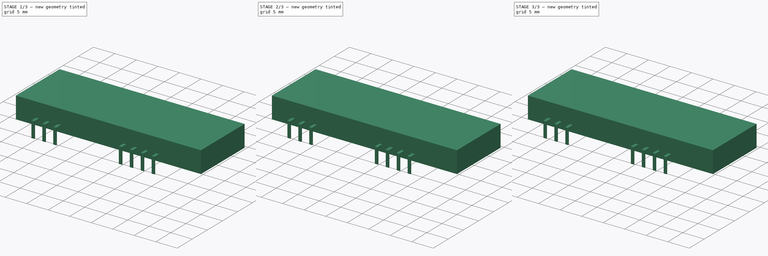
[diagram: build sequence overview — one tinted view per stage of 3, left to right]
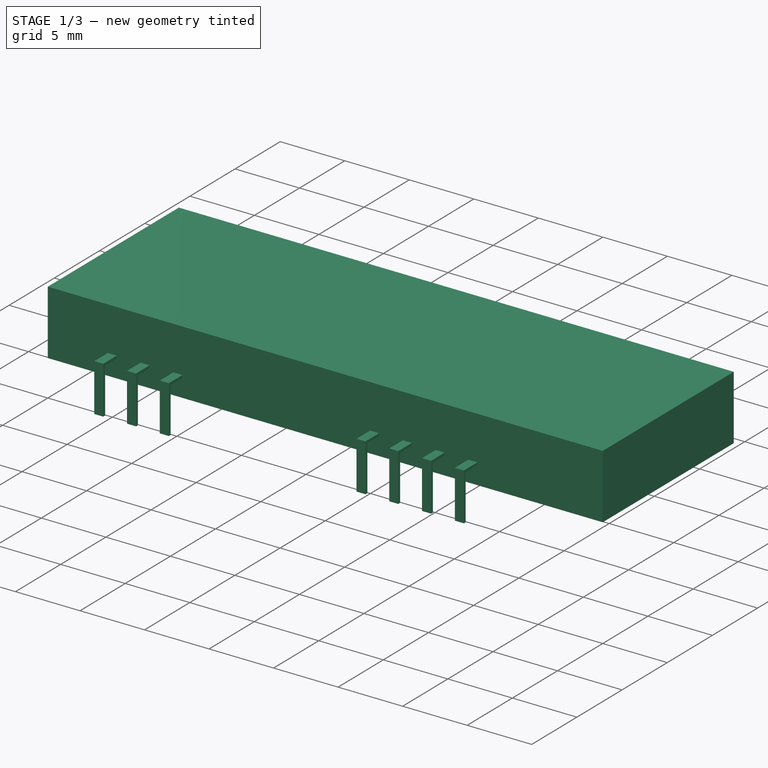
[diagram: stage 1 of 3 — iso view after this stage's code; geometry added in this stage tinted green]
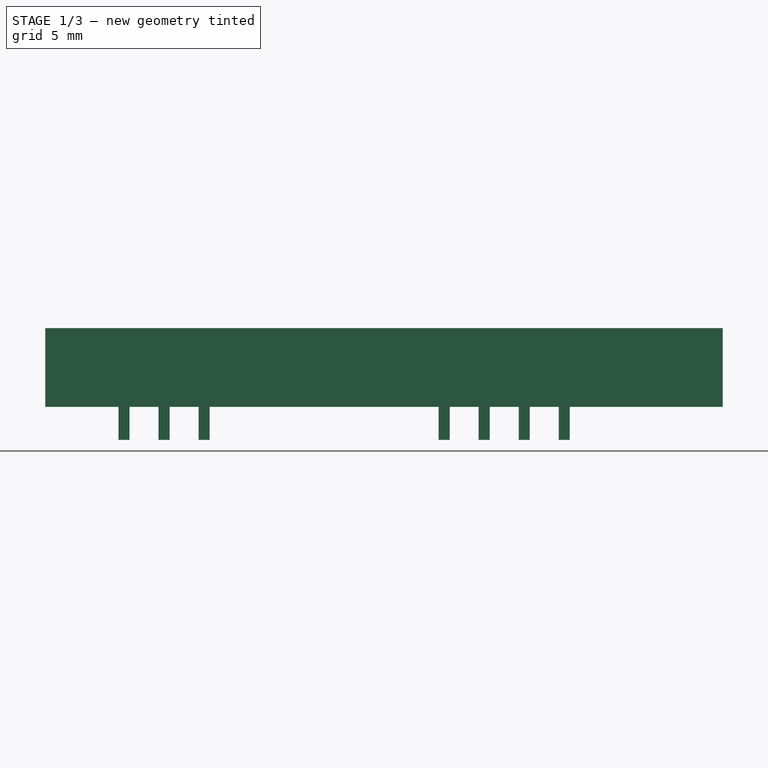
[diagram: stage 1 of 3 — front view after this stage's code; geometry added in this stage tinted green]
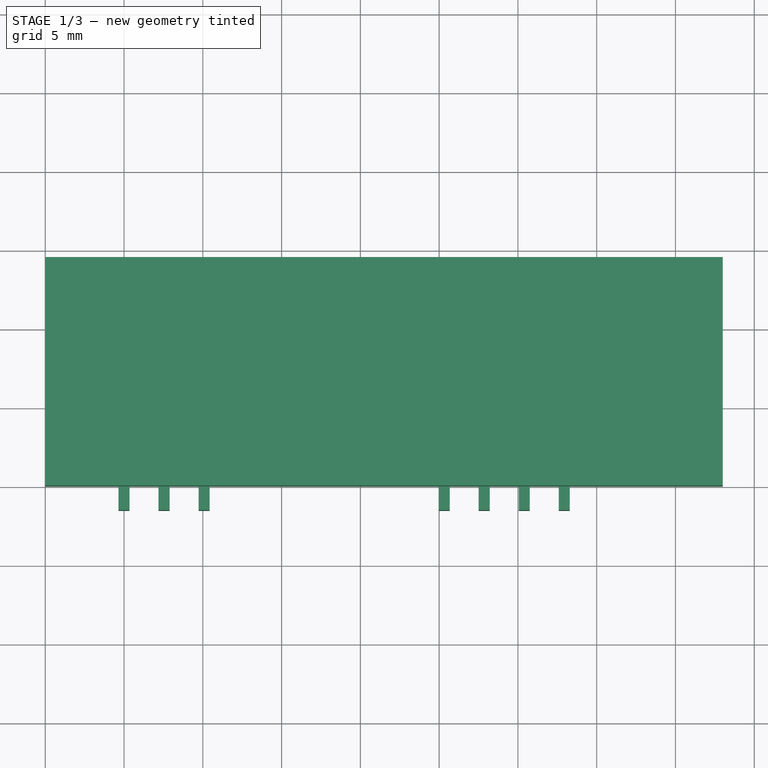
[diagram: stage 1 of 3 — top view after this stage's code; geometry added in this stage tinted green]
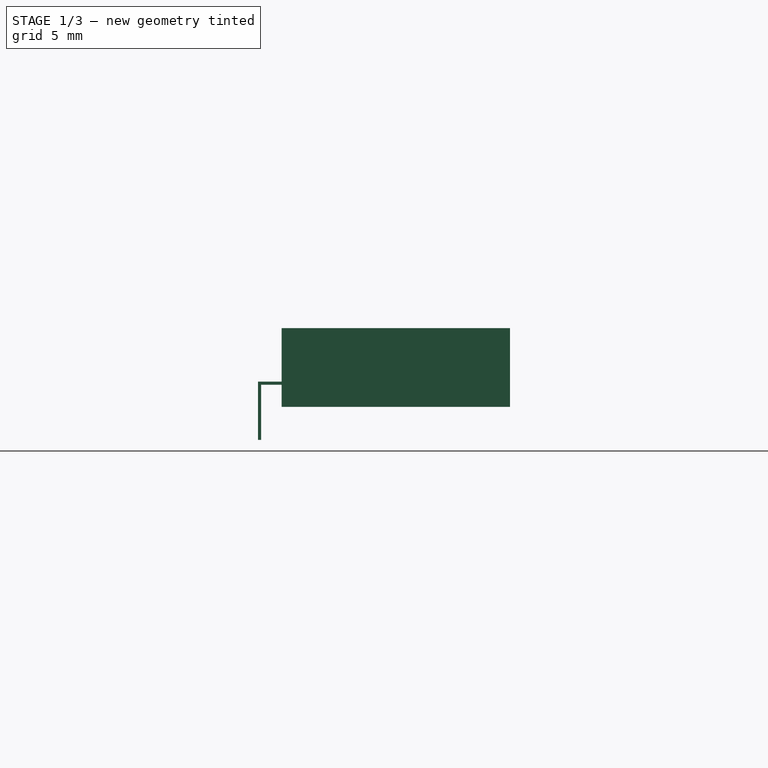
[diagram: stage 1 of 3 — right view after this stage's code; geometry added in this stage tinted green]
FCSTD DOCUMENT  (FreeCAD 0.15R4671 (Git))
Label: HX1
License: All rights reserved
LicenseURL: http://en.wikipedia.org/wiki/All_rights_reserved
objects: PartDesign::Fillet×5, Sketcher::SketchObject×2, PartDesign::Pad×2, Part::Box×1
note: 12 computed .brp shape members not serialized (recipe doc carries the construction recipe); baked Part::Feature solids carry a one-line shape summary decoded from their .brp

FEATURE [Part::Box] Box  label="Würfel"
  Height = 5
  Length = 43
  Width = 14.5
FEATURE [Sketcher::SketchObject] Sketch
  Placement = pos=(0,0,0) rot=(1,0,0;1.5708rad)
  Support = -> Box [Face3]
  sketch-geometry (28):
    g0: LineSegment StartX=4.65 StartY=1.4 StartZ=0 EndX=5.35 EndY=1.4 EndZ=0
    g1: LineSegment StartX=5.35 StartY=1.4 StartZ=0 EndX=5.35 EndY=1.6 EndZ=0
    g2: LineSegment StartX=5.35 StartY=1.6 StartZ=0 EndX=4.65 EndY=1.6 EndZ=0
    g3: LineSegment StartX=4.65 StartY=1.6 StartZ=0 EndX=4.65 EndY=1.4 EndZ=0
    g4: LineSegment StartX=7.19 StartY=1.4 StartZ=0 EndX=7.89 EndY=1.4 EndZ=0
    g5: LineSegment StartX=7.89 StartY=1.4 StartZ=0 EndX=7.89 EndY=1.6 EndZ=0
    g6: LineSegment StartX=7.89 StartY=1.6 StartZ=0 EndX=7.19 EndY=1.6 EndZ=0
    g7: LineSegment StartX=7.19 StartY=1.6 StartZ=0 EndX=7.19 EndY=1.4 EndZ=0
    g8: LineSegment StartX=10.43 StartY=1.4 StartZ=0 EndX=9.73 EndY=1.4 EndZ=0
    g9: LineSegment StartX=9.73 StartY=1.4 StartZ=0 EndX=9.73 EndY=1.6 EndZ=0
    g10: LineSegment StartX=9.73 StartY=1.6 StartZ=0 EndX=10.43 EndY=1.6 EndZ=0
    g11: LineSegment StartX=10.43 StartY=1.6 StartZ=0 EndX=10.43 EndY=1.4 EndZ=0
    g12: LineSegment StartX=25.67 StartY=1.4 StartZ=0 EndX=24.97 EndY=1.4 EndZ=0
    g13: LineSegment StartX=24.97 StartY=1.4 StartZ=0 EndX=24.97 EndY=1.6 EndZ=0
    g14: LineSegment StartX=24.97 StartY=1.6 StartZ=0 EndX=25.67 EndY=1.6 EndZ=0
    g15: LineSegment StartX=25.67 StartY=1.6 StartZ=0 EndX=25.67 EndY=1.4 EndZ=0
    g16: LineSegment StartX=28.21 StartY=1.4 StartZ=0 EndX=27.51 EndY=1.4 EndZ=0
    g17: LineSegment StartX=27.51 StartY=1.4 StartZ=0 EndX=27.51 EndY=1.6 EndZ=0
    g18: LineSegment StartX=27.51 StartY=1.6 StartZ=0 EndX=28.21 EndY=1.6 EndZ=0
    g19: LineSegment StartX=28.21 StartY=1.6 StartZ=0 EndX=28.21 EndY=1.4 EndZ=0
    g20: LineSegment StartX=30.05 StartY=1.4 StartZ=0 EndX=30.75 EndY=1.4 EndZ=0
    g21: LineSegment StartX=30.75 StartY=1.4 StartZ=0 EndX=30.75 EndY=1.6 EndZ=0
    g22: LineSegment StartX=30.75 StartY=1.6 StartZ=0 EndX=30.05 EndY=1.6 EndZ=0
    g23: LineSegment StartX=30.05 StartY=1.6 StartZ=0 EndX=30.05 EndY=1.4 EndZ=0
    g24: LineSegment StartX=32.59 StartY=1.4 StartZ=0 EndX=33.29 EndY=1.4 EndZ=0
    g25: LineSegment StartX=33.29 StartY=1.4 StartZ=0 EndX=33.29 EndY=1.6 EndZ=0
    g26: LineSegment StartX=33.29 StartY=1.6 StartZ=0 EndX=32.59 EndY=1.6 EndZ=0
    g27: LineSegment StartX=32.59 StartY=1.6 StartZ=0 EndX=32.59 EndY=1.4 EndZ=0
  constraints (84):
    c: Coincident(g0,g1)
    c: Coincident(g1,g2)
    c: Coincident(g2,g3)
    c: Coincident(g3,g0)
    c: Horizontal(g0)
    c: Horizontal(g2)
    c: Vertical(g1)
    c: Vertical(g3)
    c: DistanceX(g2) = -0.7
    c: DistanceY(g3) = -0.2
    c: DistanceX(g-1,g0) = 4.65
    c: DistanceY(g-1,g0) = 1.4
    c: Coincident(g4,g5)
    c: Coincident(g5,g6)
    c: Coincident(g6,g7)
    c: Coincident(g7,g4)
    c: Horizontal(g4)
    c: Horizontal(g6)
    c: Vertical(g5)
    c: Vertical(g7)
    c: Coincident(g8,g9)
    c: Coincident(g9,g10)
    c: Coincident(g10,g11)
    c: Coincident(g11,g8)
    c: Horizontal(g8)
    c: Horizontal(g10)
    c: Vertical(g9)
    c: Vertical(g11)
    c: Coincident(g12,g13)
    c: Coincident(g13,g14)
    c: Coincident(g14,g15)
    c: Coincident(g15,g12)
    c: Horizontal(g12)
    c: Horizontal(g14)
    c: Vertical(g13)
    c: Vertical(g15)
    c: Coincident(g16,g17)
    c: Coincident(g17,g18)
    c: Coincident(g18,g19)
    c: Coincident(g19,g16)
    c: Horizontal(g16)
    c: Horizontal(g18)
    c: Vertical(g17)
    c: Vertical(g19)
    c: Coincident(g20,g21)
    c: Coincident(g21,g22)
    c: Coincident(g22,g23)
    c: Coincident(g23,g20)
    c: Horizontal(g20)
    c: Horizontal(g22)
    c: Vertical(g21)
    c: Vertical(g23)
    c: Coincident(g24,g25)
    c: Coincident(g25,g26)
    c: Coincident(g26,g27)
    c: Coincident(g27,g24)
    c: Horizontal(g24)
    c: Horizontal(g26)
    c: Vertical(g25)
    c: Vertical(g27)
    c: Equal(g3,g7)
    c: Equal(g7,g11)
    c: Equal(g11,g15)
    c: Equal(g15,g19)
    c: Equal(g19,g23)
    c: Equal(g23,g27)
    c: Equal(g2,g6)
    c: Equal(g6,g10)
    c: Equal(g10,g14)
    c: Equal(g14,g18)
    c: Equal(g18,g22)
    c: Equal(g22,g26)
    c: DistanceX(g2,g6) = 2.54
    c: DistanceY(g0,g4) = 0
    c: DistanceY(g4,g8) = 0
    c: DistanceX(g6,g9) = 2.54
    c: DistanceY(g8,g12) = 0
    c: DistanceY(g12,g16) = 0
    c: DistanceY(g16,g20) = 0
    c: DistanceY(g20,g24) = 0
    c: DistanceX(g9,g13) = 15.24
    c: DistanceX(g13,g17) = 2.54
    c: DistanceX(g17,g22) = 2.54
    c: DistanceX(g22,g26) = 2.54
FEATURE [PartDesign::Pad] Pad
  Length = 1.5
  Length2 = 100
  Sketch = -> Sketch
  Type = 0
FEATURE [Sketcher::SketchObject] Sketch001
  ExternalGeometry = -> [Pad]
  Placement = pos=(0,0,1.4) rot=(1,0,0;3.14159rad)
  Support = -> Pad [Face16]
  sketch-geometry (28):
    g0: LineSegment StartX=7.19 StartY=1.5 StartZ=0 EndX=7.89 EndY=1.5 EndZ=0
    g1: LineSegment StartX=7.89 StartY=1.5 StartZ=0 EndX=7.89 EndY=1.3 EndZ=0
    g2: LineSegment StartX=7.89 StartY=1.3 StartZ=0 EndX=7.19 EndY=1.3 EndZ=0
    g3: LineSegment StartX=7.19 StartY=1.3 StartZ=0 EndX=7.19 EndY=1.5 EndZ=0
    g4: LineSegment StartX=9.73 StartY=1.5 StartZ=0 EndX=10.43 EndY=1.5 EndZ=0
    g5: LineSegment StartX=10.43 StartY=1.5 StartZ=0 EndX=10.43 EndY=1.3 EndZ=0
    g6: LineSegment StartX=10.43 StartY=1.3 StartZ=0 EndX=9.73 EndY=1.3 EndZ=0
    g7: LineSegment StartX=9.73 StartY=1.3 StartZ=0 EndX=9.73 EndY=1.5 EndZ=0
    g8: LineSegment StartX=24.97 StartY=1.5 StartZ=0 EndX=25.67 EndY=1.5 EndZ=0
    g9: LineSegment StartX=25.67 StartY=1.5 StartZ=0 EndX=25.67 EndY=1.3 EndZ=0
    g10: LineSegment StartX=25.67 StartY=1.3 StartZ=0 EndX=24.97 EndY=1.3 EndZ=0
    g11: LineSegment StartX=24.97 StartY=1.3 StartZ=0 EndX=24.97 EndY=1.5 EndZ=0
    g12: LineSegment StartX=27.51 StartY=1.5 StartZ=0 EndX=28.21 EndY=1.5 EndZ=0
    g13: LineSegment StartX=28.21 StartY=1.5 StartZ=0 EndX=28.21 EndY=1.3 EndZ=0
    g14: LineSegment StartX=28.21 StartY=1.3 StartZ=0 EndX=27.51 EndY=1.3 EndZ=0
    g15: LineSegment StartX=27.51 StartY=1.3 StartZ=0 EndX=27.51 EndY=1.5 EndZ=0
    g16: LineSegment StartX=32.59 StartY=1.5 StartZ=0 EndX=33.29 EndY=1.5 EndZ=0
    g17: LineSegment StartX=33.29 StartY=1.5 StartZ=0 EndX=33.29 EndY=1.3 EndZ=0
    g18: LineSegment StartX=33.29 StartY=1.3 StartZ=0 EndX=32.59 EndY=1.3 EndZ=0
    g19: LineSegment StartX=32.59 StartY=1.3 StartZ=0 EndX=32.59 EndY=1.5 EndZ=0
    g20: LineSegment StartX=30.05 StartY=1.5 StartZ=0 EndX=30.75 EndY=1.5 EndZ=0
    g21: LineSegment StartX=30.75 StartY=1.5 StartZ=0 EndX=30.75 EndY=1.3 EndZ=0
    g22: LineSegment StartX=30.75 StartY=1.3 StartZ=0 EndX=30.05 EndY=1.3 EndZ=0
    g23: LineSegment StartX=30.05 StartY=1.3 StartZ=0 EndX=30.05 EndY=1.5 EndZ=0
    g24: LineSegment StartX=4.65 StartY=1.5 StartZ=0 EndX=5.35 EndY=1.5 EndZ=0
    g25: LineSegment StartX=5.35 StartY=1.5 StartZ=0 EndX=5.35 EndY=1.3 EndZ=0
    g26: LineSegment StartX=5.35 StartY=1.3 StartZ=0 EndX=4.65 EndY=1.3 EndZ=0
    g27: LineSegment StartX=4.65 StartY=1.3 StartZ=0 EndX=4.65 EndY=1.5 EndZ=0
  constraints (77):
    c: Coincident(g0,g1)
    c: Coincident(g1,g2)
    c: Coincident(g2,g3)
    c: Coincident(g3,g0)
    c: Horizontal(g0)
    c: Horizontal(g2)
    c: Vertical(g1)
    c: Vertical(g3)
    c: Coincident(g0,g-5)
    c: PointOnObject(g1,g-6)
    c: Coincident(g4,g5)
    c: Coincident(g5,g6)
    c: Coincident(g6,g7)
    c: Coincident(g7,g4)
    c: Horizontal(g4)
    c: Horizontal(g6)
    c: Vertical(g5)
    c: Vertical(g7)
    c: Coincident(g4,g-7)
    c: PointOnObject(g5,g-8)
    c: Coincident(g8,g9)
    c: Coincident(g9,g10)
    c: Coincident(g10,g11)
    c: Coincident(g11,g8)
    c: Horizontal(g8)
    c: Horizontal(g10)
    c: Vertical(g9)
    c: Vertical(g11)
    c: Coincident(g8,g-9)
    c: PointOnObject(g9,g-13)
    c: Coincident(g12,g13)
    c: Coincident(g13,g14)
    c: Coincident(g14,g15)
    c: Coincident(g15,g12)
    c: Horizontal(g12)
    c: Horizontal(g14)
    c: Vertical(g13)
    c: Vertical(g15)
    c: Coincident(g12,g-10)
    c: PointOnObject(g13,g-12)
    c: Coincident(g16,g17)
    c: Coincident(g17,g18)
    c: Coincident(g18,g19)
    c: Coincident(g19,g16)
    c: Horizontal(g16)
    c: Horizontal(g18)
    c: Vertical(g17)
    c: Vertical(g19)
    c: Coincident(g16,g-15)
    c: PointOnObject(g17,g-16)
    c: Coincident(g20,g21)
    c: Coincident(g21,g22)
    c: Coincident(g22,g23)
    c: Coincident(g23,g20)
    c: Horizontal(g20)
    c: Horizontal(g22)
    c: Vertical(g21)
    c: Vertical(g23)
    c: Coincident(g20,g-11)
    c: PointOnObject(g21,g-14)
    c: Coincident(g24,g25)
    c: Coincident(g25,g26)
    c: Coincident(g26,g27)
    c: Coincident(g27,g24)
    c: Horizontal(g24)
    c: Horizontal(g26)
    c: Vertical(g25)
    c: Vertical(g27)
    c: Coincident(g24,g-3)
    c: PointOnObject(g25,g-4)
    c: DistanceY(g27) = 0.2
    c: Equal(g3,g27)
    c: Equal(g27,g7)
    c: Equal(g7,g11)
    c: Equal(g11,g15)
    c: Equal(g15,g23)
    c: Equal(g23,g19)
FEATURE [PartDesign::Pad] Pad001
  Length = 3.5
  Length2 = 100
  Sketch = -> Sketch001
  Type = 0
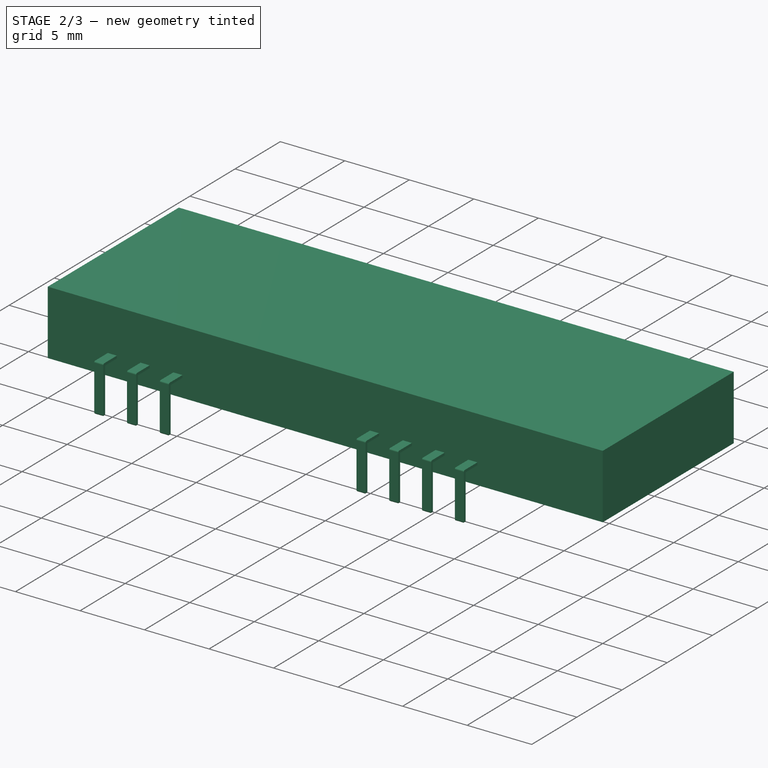
[diagram: stage 2 of 3 — iso view after this stage's code; geometry added in this stage tinted green]
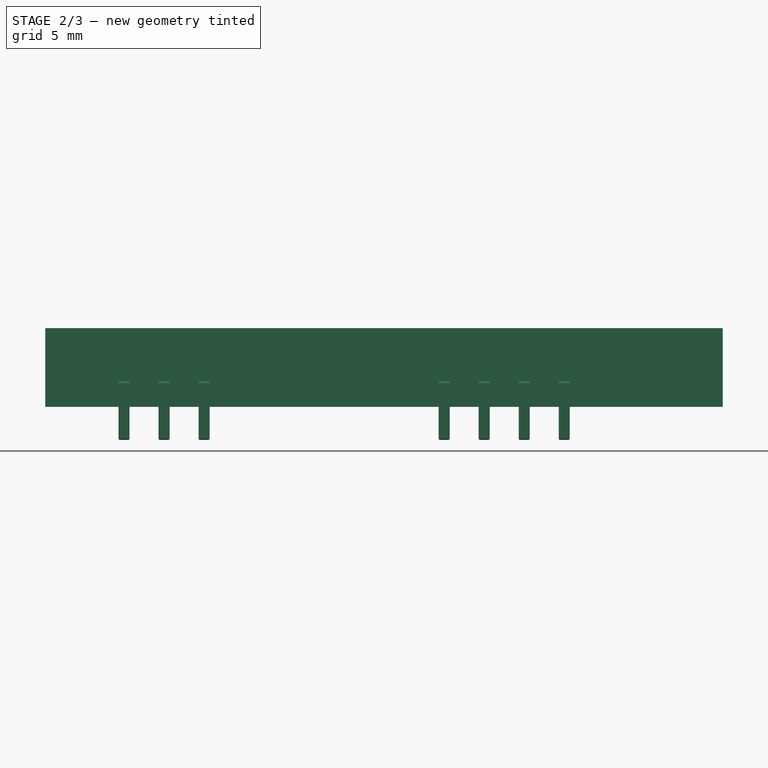
[diagram: stage 2 of 3 — front view after this stage's code; geometry added in this stage tinted green]
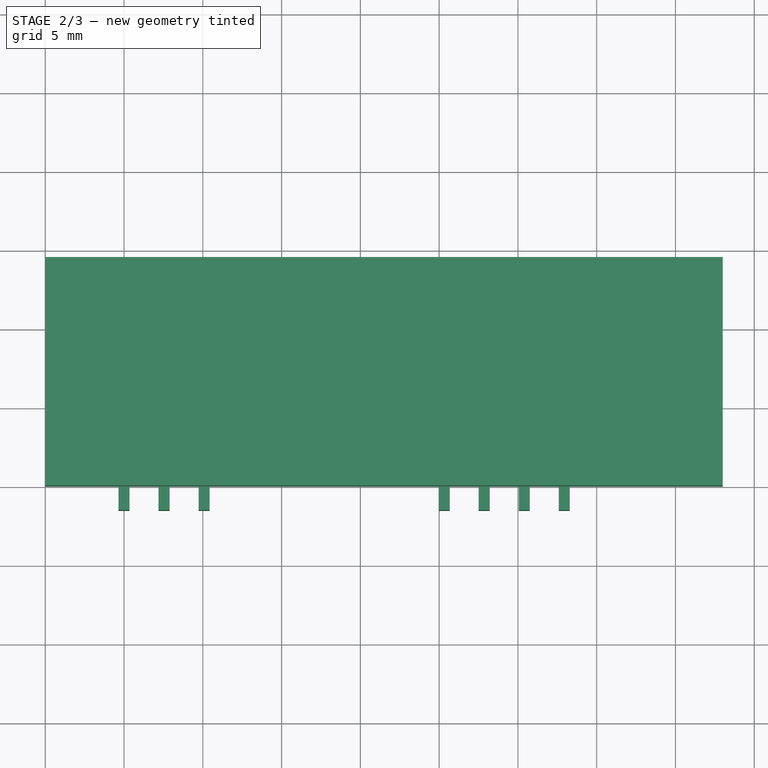
[diagram: stage 2 of 3 — top view after this stage's code; geometry added in this stage tinted green]
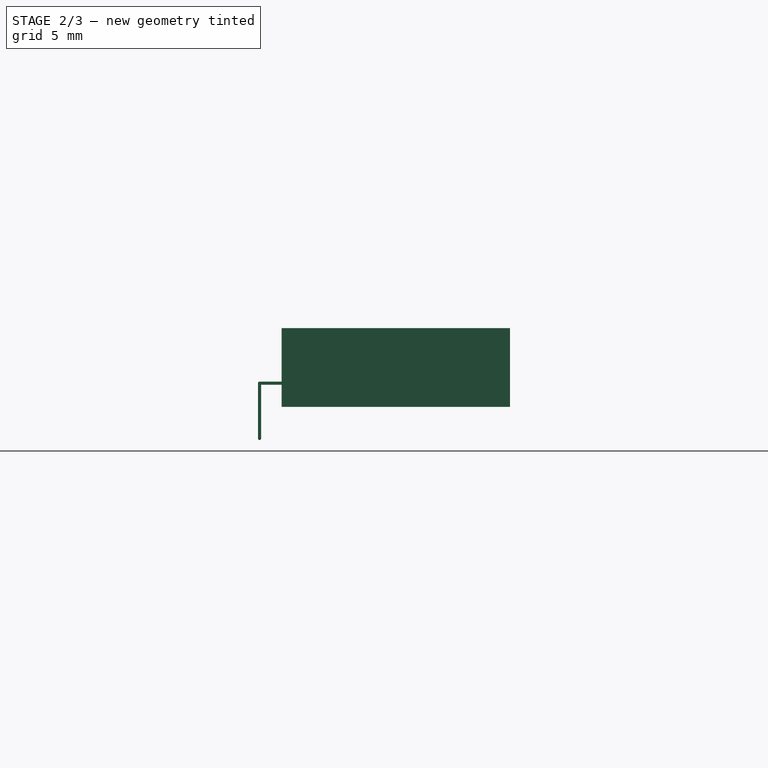
[diagram: stage 2 of 3 — right view after this stage's code; geometry added in this stage tinted green]
FEATURE [PartDesign::Fillet] Fillet
  Base = -> Pad001 [Edge42,Edge98,Edge108,Edge52,Edge70,Edge72,Edge82]
  Radius = 0.1
FEATURE [PartDesign::Fillet] Fillet001
  Base = -> Fillet [Edge191,Edge156,Edge158,Edge160,Edge192,Edge165,Edge167,Edge169,Edge190,Edge147,Edge149,Edge151,Edge189,Edge138,Edge140,Edge142,Edge133,Edge131,Edge134,Edge48,Edge193,Edge179,Edge172,Edge176,Edge194,Edge188,Edge181,Edge185]
  Radius = 0.099999
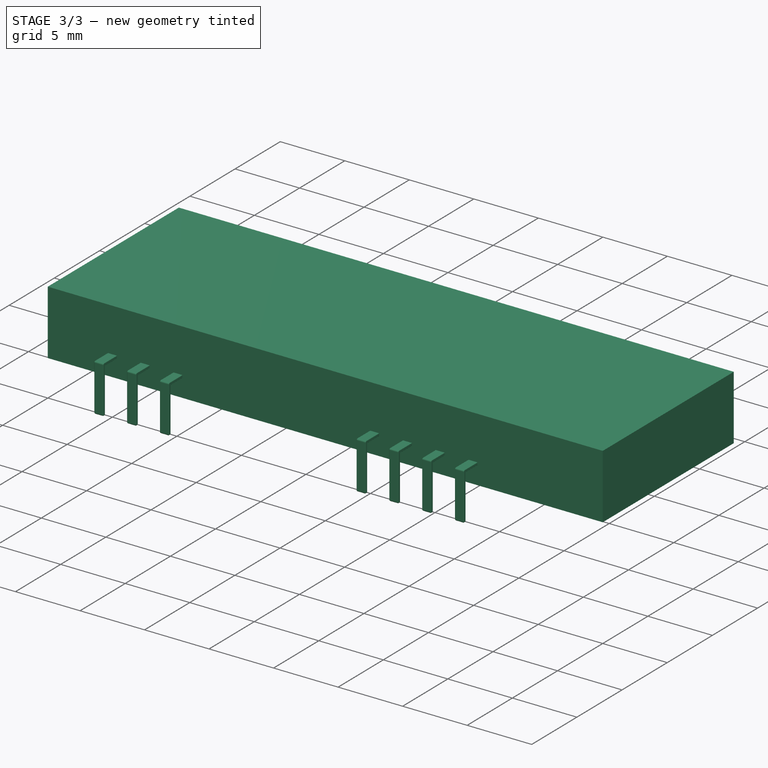
[diagram: stage 3 of 3 — iso view after this stage's code; geometry added in this stage tinted green]
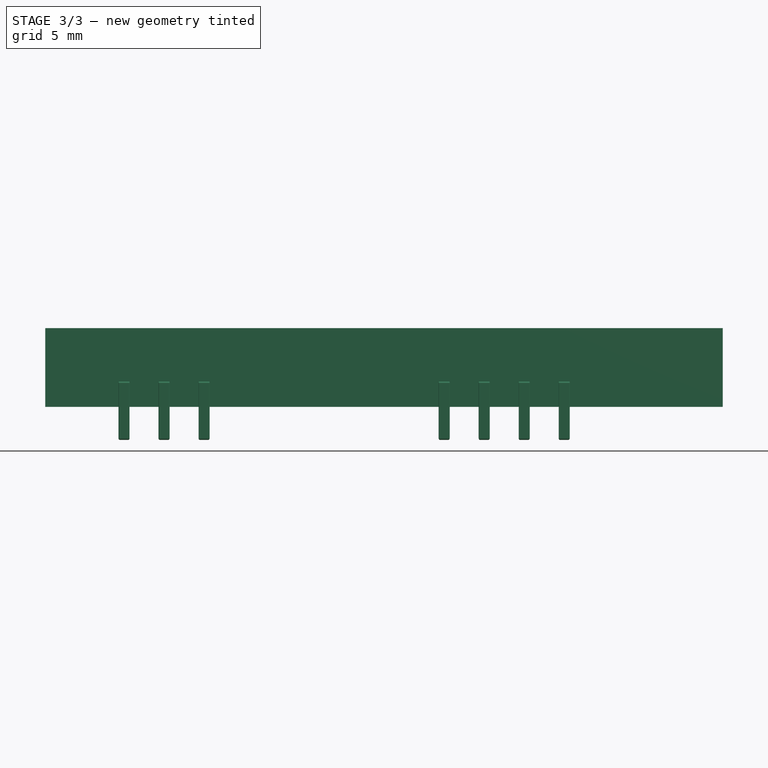
[diagram: stage 3 of 3 — front view after this stage's code; geometry added in this stage tinted green]
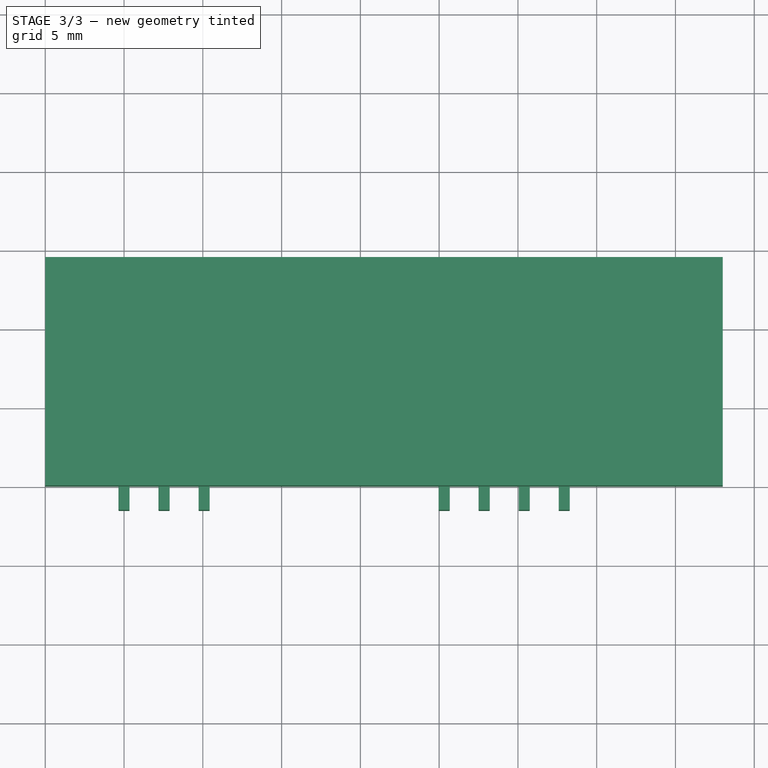
[diagram: stage 3 of 3 — top view after this stage's code; geometry added in this stage tinted green]
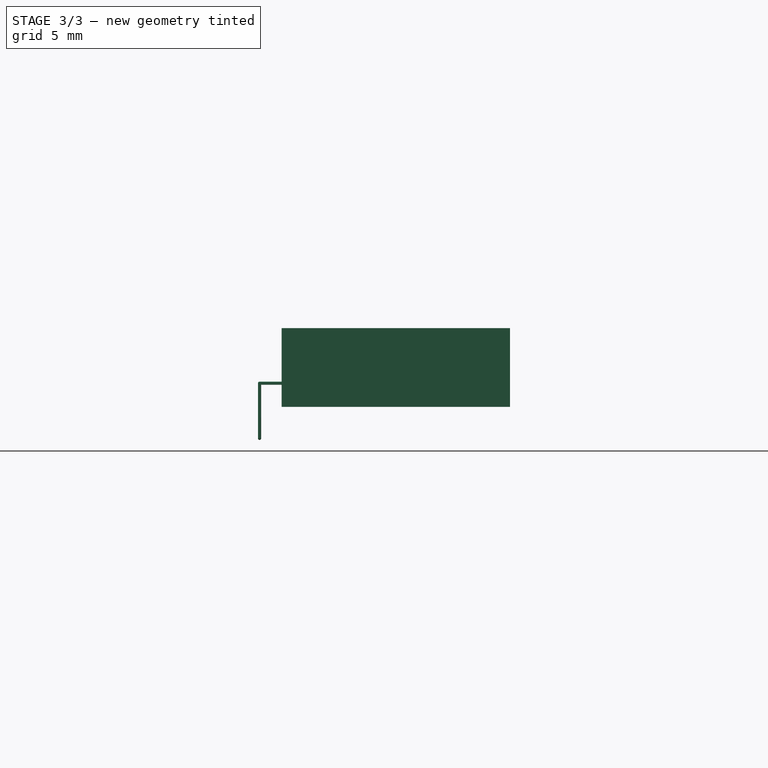
[diagram: stage 3 of 3 — right view after this stage's code; geometry added in this stage tinted green]
FEATURE [PartDesign::Fillet] Fillet002
  Base = -> Fillet001 [Edge160,Edge154,Edge169,Edge163,Edge178,Edge172,Edge151,Edge145,Edge4,Edge18,Edge185,Edge186,Edge194,Edge195]
  Radius = 0.025
FEATURE [PartDesign::Fillet] Fillet003
  Base = -> Fillet002 [Edge256,Edge221,Edge225,Edge240,Edge245,Edge261,Edge213,Edge208,Edge3,Edge11,Edge269,Edge272,Edge285,Edge288]
  Radius = 0.025
FEATURE [PartDesign::Fillet] Fillet004
  Base = -> Fillet003 [Edge146,Edge137,Edge169,Edge164,Edge184,Edge189,Edge124,Edge129,Edge16,Edge30,Edge197,Edge206,Edge217,Edge226]
  Radius = 0.025
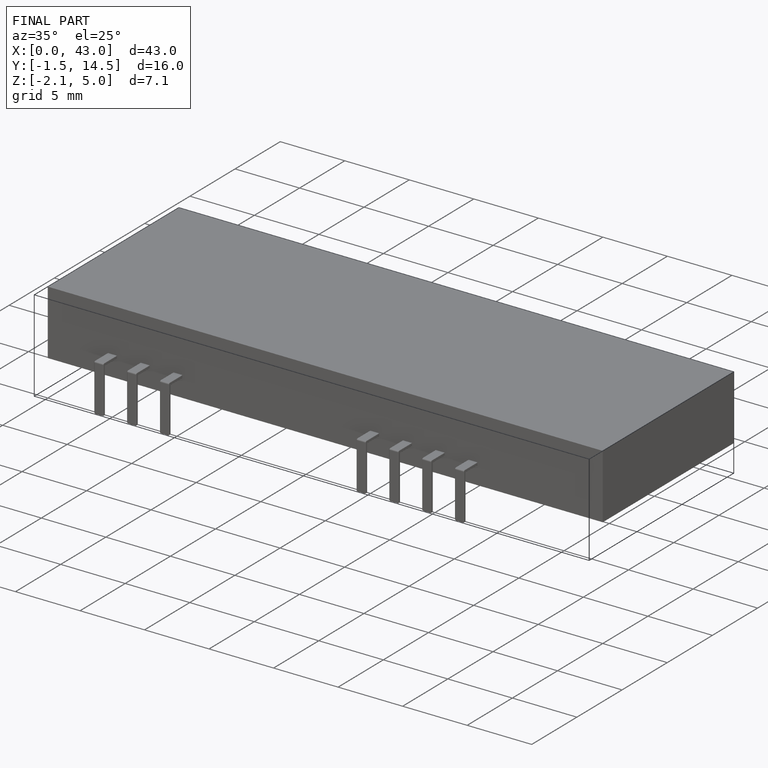
[diagram: finished part — iso view with bounding-box wireframe]
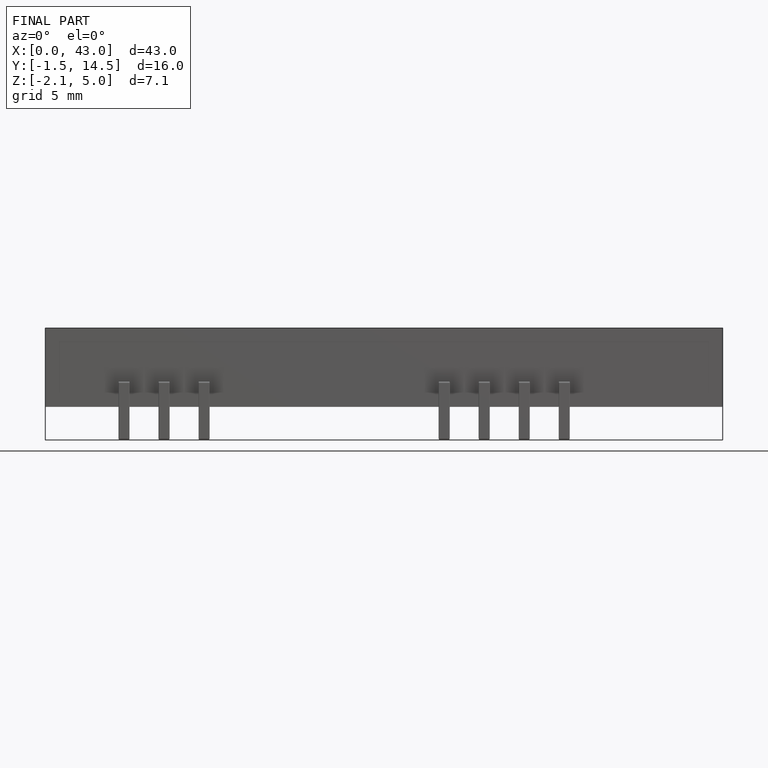
[diagram: finished part — front view with bounding-box wireframe]
